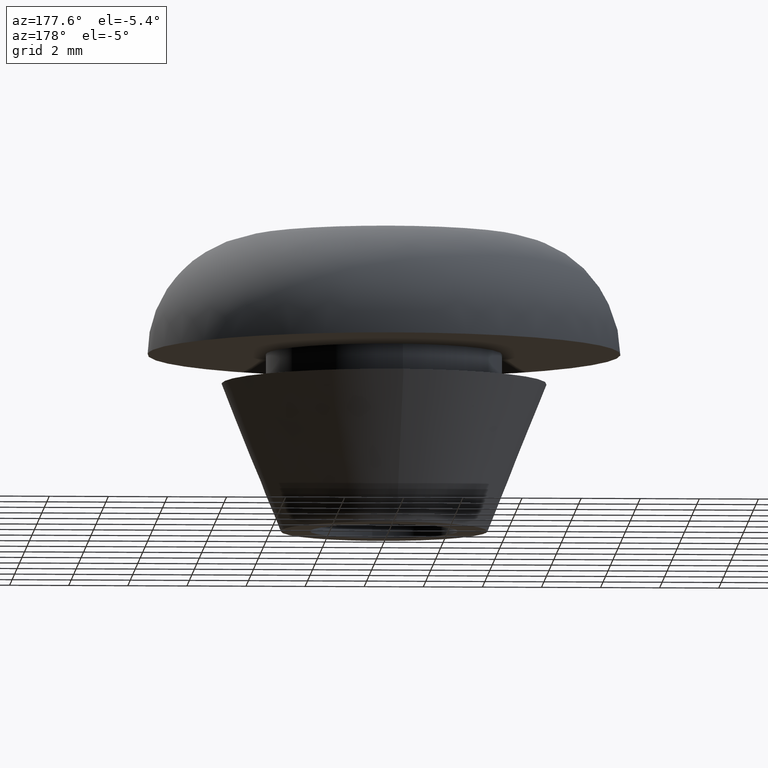
[diagram: clean part render]
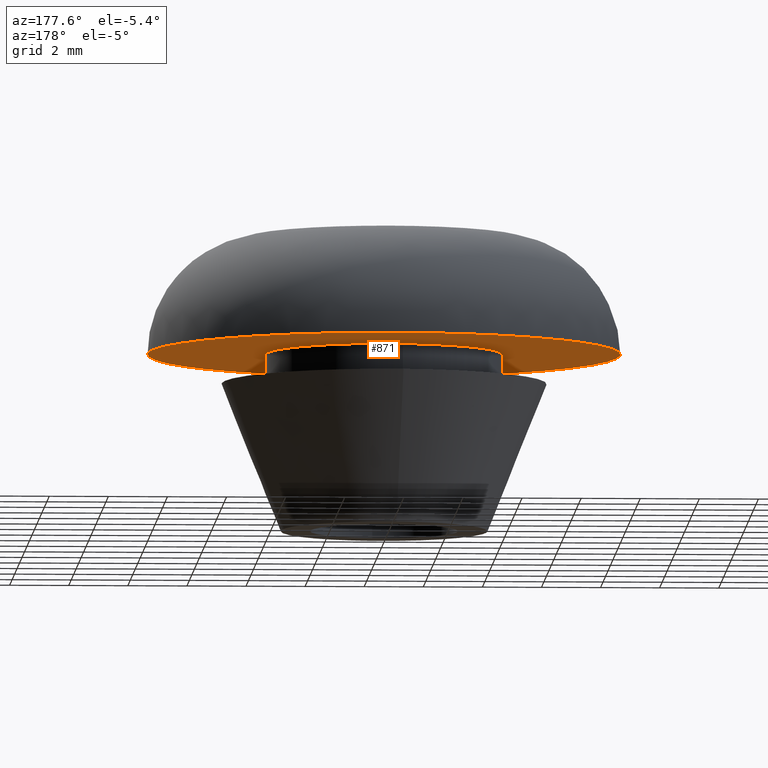
[diagram: same view with one face highlighted and labeled with its STEP entity id]
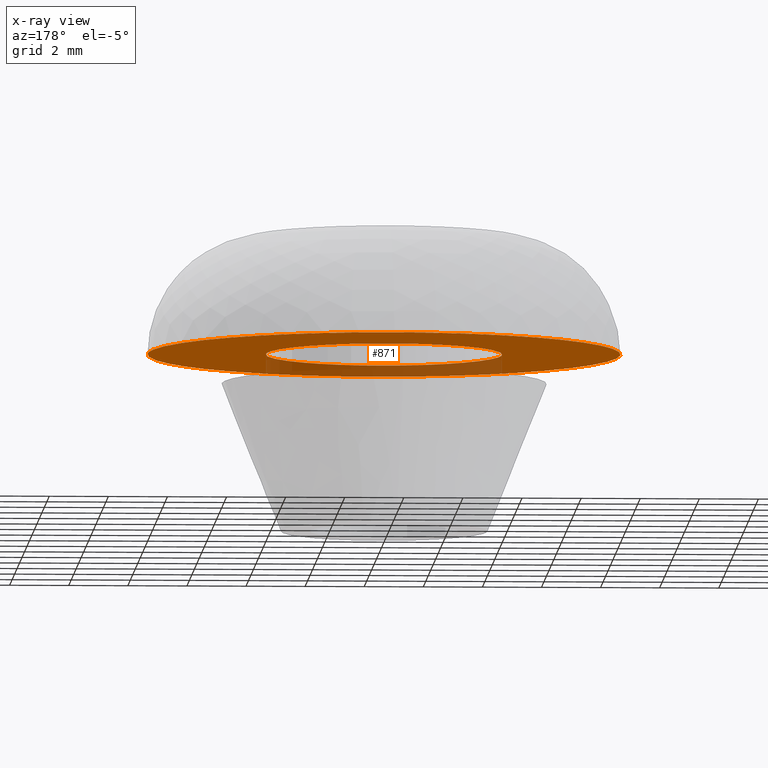
[diagram: x-ray of the same camera — body ghosted, the highlighted face saturated]
A machine part, auxiliary view. The second image highlights one B-rep face of the part: STEP entity #871.
The next image is the same camera in x-ray: the body ghosted, the highlighted face saturated — about 24% of this face is hidden behind the body in this view.
In plain terms, the highlighted face is a freeform B-spline surface patch.
Its self-contained STEP definition (entity closure, byte-faithful):
#252=CARTESIAN_POINT('',(-0.472135276174555,3.972038303061637,5.999999999999973));
#253=VERTEX_POINT('',#252);
#254=CARTESIAN_POINT('',(4.0,0.0,6.0));
#255=VERTEX_POINT('',#254);
#256=CARTESIAN_POINT('',(-0.472135276174555,3.972038303061638,5.999999999999973));
#257=CARTESIAN_POINT('',(-0.236895638593835,4.0,6.0));
#258=CARTESIAN_POINT('',(0.0,4.0,6.0));
#259=CARTESIAN_POINT('',(4.000000000000000,4.000000000000000,6.0));
#260=CARTESIAN_POINT('',(4.0,0.0,6.0));
#268=(BOUNDED_CURVE()B_SPLINE_CURVE(2,(#256,#257,#258,#259,#260),.UNSPECIFIED.,.F.,.U.)B_SPLINE_CURVE_WITH_KNOTS((3,2,3),(0.229562544250081,0.250000000000000,0.500000000000000),.UNSPECIFIED.)CURVE()GEOMETRIC_REPRESENTATION_ITEM()RATIONAL_B_SPLINE_CURVE((0.956026892830324,0.976056031204195,1.0,0.707106781186548,1.0))REPRESENTATION_ITEM(''));
#269=EDGE_CURVE('',#253,#255,#268,.T.);
#271=CARTESIAN_POINT('',(0.244191507870781,-3.992539355783076,6.000000000000052));
#272=VERTEX_POINT('',#271);
#273=CARTESIAN_POINT('',(4.0,0.0,6.0));
#274=CARTESIAN_POINT('',(4.000000000000000,-3.762826770073696,6.0));
#275=CARTESIAN_POINT('',(0.244191507870781,-3.992539355783075,6.000000000000052));
#283=(BOUNDED_CURVE()B_SPLINE_CURVE(2,(#273,#274,#275),.UNSPECIFIED.,.F.,.U.)B_SPLINE_CURVE_WITH_KNOTS((3,3),(0.500000000000000,0.739333076779450),.UNSPECIFIED.)CURVE()GEOMETRIC_REPRESENTATION_ITEM()RATIONAL_B_SPLINE_CURVE((1.0,0.719603859094159,0.976072287148952))REPRESENTATION_ITEM(''));
#284=EDGE_CURVE('',#255,#272,#283,.T.);
#351=CARTESIAN_POINT('',(-4.0,0.0,6.0));
#352=VERTEX_POINT('',#351);
#353=CARTESIAN_POINT('',(-4.0,0.0,6.0));
#354=CARTESIAN_POINT('',(-4.0,3.552699601215653,6.0));
#355=CARTESIAN_POINT('',(-0.472135276174555,3.972038303061638,5.999999999999973));
#363=(BOUNDED_CURVE()B_SPLINE_CURVE(2,(#353,#354,#355),.UNSPECIFIED.,.F.,.U.)B_SPLINE_CURVE_WITH_KNOTS((3,3),(0.0,0.229562544250081),.UNSPECIFIED.)CURVE()GEOMETRIC_REPRESENTATION_ITEM()RATIONAL_B_SPLINE_CURVE((1.0,0.731050749982353,0.956026892830324))REPRESENTATION_ITEM(''));
#364=EDGE_CURVE('',#352,#253,#363,.T.);
#398=CARTESIAN_POINT('',(0.244191507870781,-3.992539355783075,6.000000000000052));
#399=CARTESIAN_POINT('',(0.122209724344552,-4.0,6.000000000000001));
#400=CARTESIAN_POINT('',(0.0,-4.0,6.0));
#401=CARTESIAN_POINT('',(-4.000000000000000,-4.000000000000000,6.0));
#402=CARTESIAN_POINT('',(-4.0,0.0,6.0));
#410=(BOUNDED_CURVE()B_SPLINE_CURVE(2,(#398,#399,#400,#401,#402),.UNSPECIFIED.,.F.,.U.)B_SPLINE_CURVE_WITH_KNOTS((3,2,3),(0.739333076779450,0.750000000000000,1.0),.UNSPECIFIED.)CURVE()GEOMETRIC_REPRESENTATION_ITEM()RATIONAL_B_SPLINE_CURVE((0.976072287148952,0.987502922092389,1.0,0.707106781186548,1.0))REPRESENTATION_ITEM(''));
#411=EDGE_CURVE('',#272,#352,#410,.T.);
#658=CARTESIAN_POINT('',(-8.0,0.0,6.0));
#659=VERTEX_POINT('',#658);
#673=CARTESIAN_POINT('',(0.923713520469362,-7.946493146797648,6.0));
#674=VERTEX_POINT('',#673);
#675=CARTESIAN_POINT('',(0.923713520469362,-7.946493146797648,6.0));
#676=CARTESIAN_POINT('',(0.463406315459325,-8.0,6.000000000000001));
#677=CARTESIAN_POINT('',(0.0,-8.0,6.0));
#678=CARTESIAN_POINT('',(-8.0,-8.0,6.0));
#679=CARTESIAN_POINT('',(-8.0,0.0,6.0));
#687=(BOUNDED_CURVE()B_SPLINE_CURVE(2,(#675,#676,#677,#678,#679),.UNSPECIFIED.,.F.,.U.)B_SPLINE_CURVE_WITH_KNOTS((3,2,3),(0.730000013374359,0.750000000000000,1.0),.UNSPECIFIED.)CURVE()GEOMETRIC_REPRESENTATION_ITEM()RATIONAL_B_SPLINE_CURVE((0.956886144514643,0.976568558163960,1.0,0.707106781186548,1.0))REPRESENTATION_ITEM(''));
#688=EDGE_CURVE('',#674,#659,#687,.T.);
#765=CARTESIAN_POINT('',(8.0,0.0,6.0));
#766=VERTEX_POINT('',#765);
#767=CARTESIAN_POINT('',(8.0,0.0,6.0));
#768=CARTESIAN_POINT('',(8.0,-7.123934173666448,6.000000000000001));
#769=CARTESIAN_POINT('',(0.923713520469362,-7.946493146797649,6.0));
#777=(BOUNDED_CURVE()B_SPLINE_CURVE(2,(#767,#768,#769),.UNSPECIFIED.,.F.,.U.)B_SPLINE_CURVE_WITH_KNOTS((3,3),(0.500000000000000,0.730000013374358),.UNSPECIFIED.)CURVE()GEOMETRIC_REPRESENTATION_ITEM()RATIONAL_B_SPLINE_CURVE((1.0,0.730538223022588,0.956886144514641))REPRESENTATION_ITEM(''));
#778=EDGE_CURVE('',#766,#674,#777,.T.);
#780=CARTESIAN_POINT('',(-8.0,0.0,6.0));
#781=CARTESIAN_POINT('',(-8.0,8.0,6.0));
#782=CARTESIAN_POINT('',(0.0,8.0,6.0));
#783=CARTESIAN_POINT('',(8.0,8.0,6.0));
#784=CARTESIAN_POINT('',(8.0,0.0,6.0));
#792=(BOUNDED_CURVE()B_SPLINE_CURVE(2,(#780,#781,#782,#783,#784),.UNSPECIFIED.,.F.,.U.)B_SPLINE_CURVE_WITH_KNOTS((3,2,3),(0.0,0.250000000000000,0.500000000000000),.UNSPECIFIED.)CURVE()GEOMETRIC_REPRESENTATION_ITEM()RATIONAL_B_SPLINE_CURVE((1.0,0.707106781186548,1.0,0.707106781186548,1.0))REPRESENTATION_ITEM(''));
#793=EDGE_CURVE('',#659,#766,#792,.T.);
#855=CARTESIAN_POINT('',(8.799199968988896,-8.799154486087057,6.0));
#856=CARTESIAN_POINT('',(-8.799200398142338,-8.799154486087057,6.0));
#857=CARTESIAN_POINT('',(8.799199968988896,8.799198234254218,6.0));
#858=CARTESIAN_POINT('',(-8.799200398142338,8.799198234254218,6.0));
#859=B_SPLINE_SURFACE_WITH_KNOTS('',1,1,((#855,#857),(#856,#858)),.UNSPECIFIED.,.F.,.F.,.U.,(2,2),(2,2),(0.0,17.598400367131230),(0.0,17.598352720341278),.UNSPECIFIED.);
#860=ORIENTED_EDGE('',*,*,#793,.T.);
#861=ORIENTED_EDGE('',*,*,#778,.T.);
#862=ORIENTED_EDGE('',*,*,#688,.T.);
#863=EDGE_LOOP('',(#860,#861,#862));
#864=FACE_OUTER_BOUND('',#863,.T.);
#865=ORIENTED_EDGE('',*,*,#284,.F.);
#866=ORIENTED_EDGE('',*,*,#269,.F.);
#867=ORIENTED_EDGE('',*,*,#364,.F.);
#868=ORIENTED_EDGE('',*,*,#411,.F.);
#869=EDGE_LOOP('',(#865,#866,#867,#868));
#870=FACE_BOUND('',#869,.T.);
#871=ADVANCED_FACE('',(#864,#870),#859,.T.);